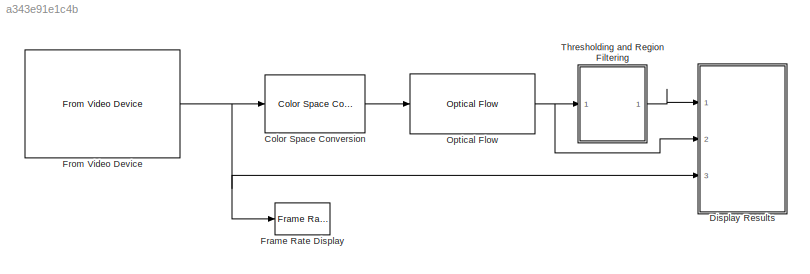
MODEL slx_a343e91e1c4b
KIND model
BLOCK [Reference] Color Space  Conversion  REF=visionconversions/Color Space
 Conversion
  Ports = [1, 1]
  SourceBlock = visionconversions/Color Space\n Conversion
  SourceType = Color Space Conversion
  conversion = Obsolete
  conversionActive = R'G'B' to intensity
  imagePorts = One multidimensional signal
  rec = Rec. 601 (SDTV)
  sys = 1125/60/2:1
  wp_str = D65
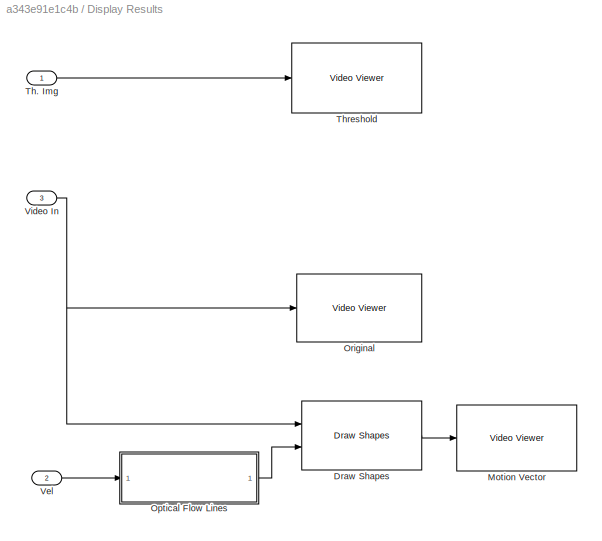
BLOCK [SubSystem] Display Results
  FunctionWithSeparateData = off
  MaskHideContents = off
  MinAlgLoopOccurrences = off
  Opaque = off
  Ports = [3]
  PropExecContextOutsideSubsystem = off
  RTWSystemCode = Auto
  RequestExecContextInheritance = off
BLOCK [Reference] Display Results/Draw Shapes  REF=visiontextngfix/Draw Shapes
  LockScale = off
  Ports = [2, 1]
  SourceBlock = visiontextngfix/Draw Shapes
  SourceType = Draw Shapes
  accumFracLength = 14
  accumMode = Same as product output
  accumWordLength = 32
  antialiasing = off
  color = [255 255 0]
  display = User-specified value
  fill = off
  fillClrSource = Specify via dialog
  imagePorts = One multidimensional signal
  inType = Obsolete
  intensity = 200
  memoryFracLength = 15
  memoryMode = Specify word length
  memoryWordLength = 16
  opacity = 0.6
  overflowMode = off
  prodOutputFracLength = 14
  prodOutputMode = Binary point scaling
  prodOutputWordLength = 32
  roundingMode = Floor
  shape = Lines
  viewport = Entire image
BLOCK [Reference] Display Results/Motion Vector  REF=visionsinks/Video Viewer
  AxisZoom = on
  DefaultConfigurationName = vipscopes.VideoViewerScopeCfg
  FigPos = [311 564 313 366]
  OpenAtMdlStart = on
  Ports = [1]
  SourceBlock = visionsinks/Video Viewer
  SourceType = Video Viewer
  UserDataPersistent = on
  colormapValue = gray(256)
  imagePorts = One multidimensional signal
  inputType = Obsolete7b
  maxInputVal = 255
  minInputVal = 0
  specRange = off
  trueSizedOnce = on
  useColorMap = off
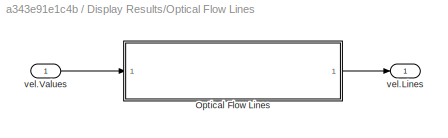
BLOCK [SubSystem] Display Results/Optical Flow Lines
  FunctionWithSeparateData = off
  MaskHideContents = off
  MinAlgLoopOccurrences = off
  Opaque = off
  Ports = [1, 1]
  PropExecContextOutsideSubsystem = off
  RTWSystemCode = Auto
  RequestExecContextInheritance = off
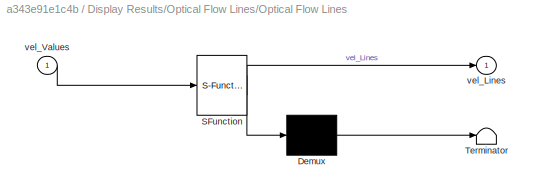
BLOCK [SubSystem] Display Results/Optical Flow Lines/Optical Flow Lines
  ErrorFcn = Stateflow.Translate.translate
  FunctionWithSeparateData = off
  MaskHideContents = off
  MinAlgLoopOccurrences = off
  Opaque = off
  PermitHierarchicalResolution = ExplicitOnly
  Ports = [1, 1]
  PropExecContextOutsideSubsystem = off
  RTWSystemCode = Auto
  RequestExecContextInheritance = off
  SFBlockType = MATLAB Function
  TreatAsAtomicUnit = on
BLOCK [Demux] Display Results/Optical Flow Lines/Optical Flow Lines/ Demux 
  Outputs = 1
  Ports = [1, 1]
BLOCK [S-Function] Display Results/Optical Flow Lines/Optical Flow Lines/ SFunction 
  EnableBusSupport = on
  FunctionName = sf_sfun
  Parameters = scaleFactor
  PortCounts = [1 2]
  Ports = [1, 2]
  Tag = Stateflow S-Function opitcal_flow 1
BLOCK [Terminator] Display Results/Optical Flow Lines/Optical Flow Lines/ Terminator 
BLOCK [Outport] Display Results/Optical Flow Lines/Optical Flow Lines/vel_Lines
  IconDisplay = Port number
BLOCK [Inport] Display Results/Optical Flow Lines/Optical Flow Lines/vel_Values
  IconDisplay = Port number
BLOCK [Outport] Display Results/Optical Flow Lines/vel.Lines
  IconDisplay = Port number
BLOCK [Inport] Display Results/Optical Flow Lines/vel.Values
  IconDisplay = Port number
BLOCK [Reference] Display Results/Original  REF=visionsinks/Video Viewer
  AxisZoom = on
  DefaultConfigurationName = vipscopes.VideoViewerScopeCfg
  FigPos = [-4 588 344 347]
  OpenAtMdlStart = on
  Ports = [1]
  SourceBlock = visionsinks/Video Viewer
  SourceType = Video Viewer
  UserDataPersistent = on
  colormapValue = gray(256)
  imagePorts = One multidimensional signal
  inputType = Obsolete7b
  maxInputVal = 255
  minInputVal = 0
  specRange = off
  trueSizedOnce = on
  useColorMap = off
BLOCK [Inport] Display Results/Th. Img
  IconDisplay = Port number
BLOCK [Reference] Display Results/Threshold  REF=visionsinks/Video Viewer
  AxisZoom = on
  DefaultConfigurationName = vipscopes.VideoViewerScopeCfg
  FigPos = [702 571 447 370]
  OpenAtMdlStart = on
  Ports = [1]
  SourceBlock = visionsinks/Video Viewer
  SourceType = Video Viewer
  UserDataPersistent = on
  colormapValue = gray(256)
  imagePorts = One multidimensional signal
  inputType = Obsolete7b
  maxInputVal = 255
  minInputVal = 0
  specRange = off
  trueSizedOnce = on
  useColorMap = off
BLOCK [Inport] Display Results/Vel
  IconDisplay = Port number
  Port = 2
BLOCK [Inport] Display Results/Video In
  IconDisplay = Port number
  Port = 3
BLOCK [Reference] Frame Rate Display  REF=visionsinks/Frame Rate
Display
  Ports = [1]
  SourceBlock = visionsinks/Frame Rate\nDisplay
  SourceType = Frame Rate Display
  UpdateRate = 10
BLOCK [Reference] From Video Device  REF=imaqlib/From Video Device
  BayerSensorAlignment = grbg
  BlockHandle = 2027.0005
  CanDoHWTrigger = no
  DataType = single
  DevXMLPath = /Applications/MATLAB_R2012b.app/toolbox/imaq/imaqadaptors/maci64
  Device = macvideo 1 (Built-in iSight)
  DeviceMenu = macvideo 1 (Built-in iSight)
  EnableHWTrigger = off
  EngLibPath = /Applications/MATLAB_R2012b.app/toolbox/imaq/imaqblks/imaqmex/maci64
  EngXMLPath = /Applications/MATLAB_R2012b.app/toolbox/imaq/imaq/private
  ObjConstructor = videoinput('macvideo', 1)
  OutputPortsMode = One multidimensional signal
  Ports = [0, 1]
  ROIColumn = 0
  ROIHeight = 480
  ROIPosition = [0 0 480 640]
  ROIRow = 0
  ROIWidth = 640
  ReturnedColorSpace = rgb
  SampleTime = 1/30
  SourceBlock = imaqlib/From Video Device
  SourceType = From Video Device
  TriggerConfiguration = none/none
  UserDataPersistent = on
  VideoFormat = YCbCr422_640x480
  VideoFormatMenu = YCbCr422_640x480
  VideoSource = default
BLOCK [Reference] Optical Flow  REF=visionanalysis/Optical Flow
  LockScale = off
  N = 1
  Ports = [1, 1]
  SourceBlock = visionanalysis/Optical Flow
  SourceType = Optical Flow
  accumFracLength = 20
  accumMode = Same as product output
  accumWordLength = 32
  discardNormalFlow = off
  eigTh = 0.0039
  firstCoeffFracLength = 12
  firstCoeffMode = Same word length as first input
  firstCoeffWordLength = 16
  gradMethod = Difference filter [-1 1]
  lambda = 1
  maxAllowAbsDiff = eps
  maxIter = 10
  memoryFracLength = 20
  memoryMode = Same as accumulator
  memoryWordLength = 32
  method = Horn-Schunck
  numInports = 3
  outVelForm = Horizontal and vertical components in complex form
  outputCurrentImage = off
  outputFracLength = 20
  outputMode = Binary point scaling
  outputWordLength = 32
  overflowMode = on
  prodOutputFracLength = 20
  prodOutputMode = Binary point scaling
  prodOutputWordLength = 32
  roundingMode = Nearest
  sigmaS = 1.5
  sigmaW = 1
  stop_criteria = When maximum number of iterations is reached
  which2img = Current frame and N-th frame back
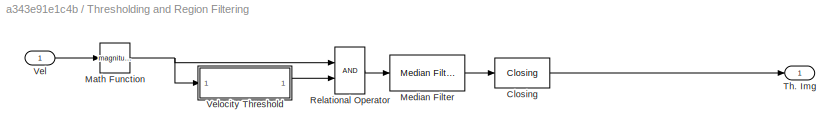
BLOCK [SubSystem] Thresholding and Region Filtering
  FunctionWithSeparateData = off
  MaskHideContents = off
  MinAlgLoopOccurrences = off
  Opaque = off
  Ports = [1, 1]
  PropExecContextOutsideSubsystem = off
  RTWSystemCode = Auto
  RequestExecContextInheritance = off
BLOCK [Reference] Thresholding and Region Filtering/Closing  REF=visionmorphops/Closing
  Ports = [1, 1]
  SourceBlock = visionmorphops/Closing
  SourceType = Closing
  nhoodsrc = Specify via dialog
  strel = strel('line',6,45)
BLOCK [Math] Thresholding and Region Filtering/Math Function
  Operator = magnitude^2
  Ports = [1, 1]
BLOCK [Reference] Thresholding and Region Filtering/Median Filter  REF=visionanalysis/Median Filter
  LockScale = off
  Ports = [1, 1]
  SourceBlock = visionanalysis/Median Filter
  SourceType = Median Filter
  accumFracLength = 30
  accumMode = Same as input
  accumWordLength = 32
  nghbood = [3 3]
  outSize = Same as input port I
  outputFracLength = 15
  outputMode = Same as input
  outputWordLength = 16
  overflowMode = off
  padSrc = Specify via dialog
  padType = Constant
  padVal = 1
  prodOutputFracLength = 30
  prodOutputMode = Same as input
  prodOutputWordLength = 32
  roundingMode = Floor
BLOCK [RelationalOperator] Thresholding and Region Filtering/Relational Operator
  InputSameDT = off
  OutDataTypeStr = boolean
  Ports = [2, 1]
BLOCK [Outport] Thresholding and Region Filtering/Th. Img
  IconDisplay = Port number
BLOCK [Inport] Thresholding and Region Filtering/Vel
  IconDisplay = Port number
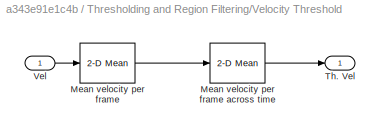
BLOCK [SubSystem] Thresholding and Region Filtering/Velocity Threshold
  FunctionWithSeparateData = off
  MaskHideContents = off
  MinAlgLoopOccurrences = off
  Opaque = off
  Ports = [1, 1]
  PropExecContextOutsideSubsystem = off
  RTWSystemCode = Auto
  RequestExecContextInheritance = off
BLOCK [Reference] Thresholding and Region Filtering/Velocity Threshold/Mean velocity per frame  REF=visionstatistics/2-D Mean
  InputProcessing = Elements as channels (sample based)
  LockScale = off
  Ports = [1, 1]
  SourceBlock = visionstatistics/2-D Mean
  SourceType = 2-D Mean
  UserDataPersistent = on
  accumDataTypeStr = fixdt([],32,0)
  accumFracLength = 0
  accumLastDataTypeStr = fixdt([],32,0)
  accumMode = Binary point scaling
  accumWordLength = 32
  additionalParams = off
  allowOverrides = on
  dimension = 1
  directionMode = Entire input
  outputDataTypeStr = Inherit: Same as accumulator
  outputFracLength = 30
  outputLastDataTypeStr = Inherit: Same as accumulator
  outputMax = []
  outputMin = []
  outputMode = Same as accumulator
  outputWordLength = 32
  overflowMode = off
  reset_popup = None
  roiEnable = off
  roiFlag = off
  roiOutput = Individual statistics for each ROI
  roiPortion = Entire ROI
  roiType = Rectangles
  roundingMode = Floor
  run = off
  treatSBRowAsCol = on
BLOCK [Reference] Thresholding and Region Filtering/Velocity Threshold/Mean velocity per frame across time  REF=visionstatistics/2-D Mean
  InputProcessing = Elements as channels (sample based)
  LockScale = off
  Ports = [1, 1]
  SourceBlock = visionstatistics/2-D Mean
  SourceType = 2-D Mean
  UserDataPersistent = on
  accumDataTypeStr = fixdt([],32,0)
  accumFracLength = 0
  accumLastDataTypeStr = fixdt([],32,0)
  accumMode = Binary point scaling
  accumWordLength = 32
  additionalParams = off
  allowOverrides = on
  dimension = 1
  directionMode = Entire input
  outputDataTypeStr = Inherit: Same as accumulator
  outputFracLength = 30
  outputLastDataTypeStr = Inherit: Same as accumulator
  outputMax = []
  outputMin = []
  outputMode = Same as accumulator
  outputWordLength = 32
  overflowMode = off
  reset_popup = None
  roiEnable = off
  roiFlag = off
  roiOutput = Individual statistics for each ROI
  roiPortion = Entire ROI
  roiType = Rectangles
  roundingMode = Floor
  run = on
  treatSBRowAsCol = on
BLOCK [Outport] Thresholding and Region Filtering/Velocity Threshold/Th. Vel
  IconDisplay = Port number
BLOCK [Inport] Thresholding and Region Filtering/Velocity Threshold/Vel
  IconDisplay = Port number
LINE Color Space  Conversion:1 -> Optical Flow:1
LINE Display Results/Draw Shapes:1 -> Display Results/Motion Vector:1
LINE Display Results/Optical Flow Lines/Optical Flow Lines:1 -> Display Results/Optical Flow Lines/vel.Lines:1
LINE Display Results/Optical Flow Lines/vel.Values:1 -> Display Results/Optical Flow Lines/Optical Flow Lines:1
LINE Display Results/Optical Flow Lines:1 -> Display Results/Draw Shapes:2
LINE Display Results/Th. Img:1 -> Display Results/Threshold:1
LINE Display Results/Vel:1 -> Display Results/Optical Flow Lines:1
NET Display Results/Video In:1 -> Display Results/Draw Shapes:1, Display Results/Original:1
NET From Video Device:1 -> Color Space  Conversion:1, Display Results:3, Frame Rate Display:1
NET Optical Flow:1 -> Display Results:2, Thresholding and Region Filtering:1
LINE Thresholding and Region Filtering/Closing:1 -> Thresholding and Region Filtering/Th. Img:1
NET Thresholding and Region Filtering/Math Function:1 -> Thresholding and Region Filtering/Relational Operator:1, Thresholding and Region Filtering/Velocity Threshold:1
LINE Thresholding and Region Filtering/Median Filter:1 -> Thresholding and Region Filtering/Closing:1
LINE Thresholding and Region Filtering/Relational Operator:1 -> Thresholding and Region Filtering/Median Filter:1
LINE Thresholding and Region Filtering/Vel:1 -> Thresholding and Region Filtering/Math Function:1
LINE Thresholding and Region Filtering/Velocity Threshold/Mean velocity per frame across time:1 -> Thresholding and Region Filtering/Velocity Threshold/Th. Vel:1
LINE Thresholding and Region Filtering/Velocity Threshold/Mean velocity per frame:1 -> Thresholding and Region Filtering/Velocity Threshold/Mean velocity per frame across time:1
LINE Thresholding and Region Filtering/Velocity Threshold/Vel:1 -> Thresholding and Region Filtering/Velocity Threshold/Mean velocity per frame:1
LINE Thresholding and Region Filtering/Velocity Threshold:1 -> Thresholding and Region Filtering/Relational Operator:2
LINE Thresholding and Region Filtering:1 -> Display Results:1
note: NET lines group one-source signal fan-out (src -> all destinations, sorted); 1:1 wires keep LINE
